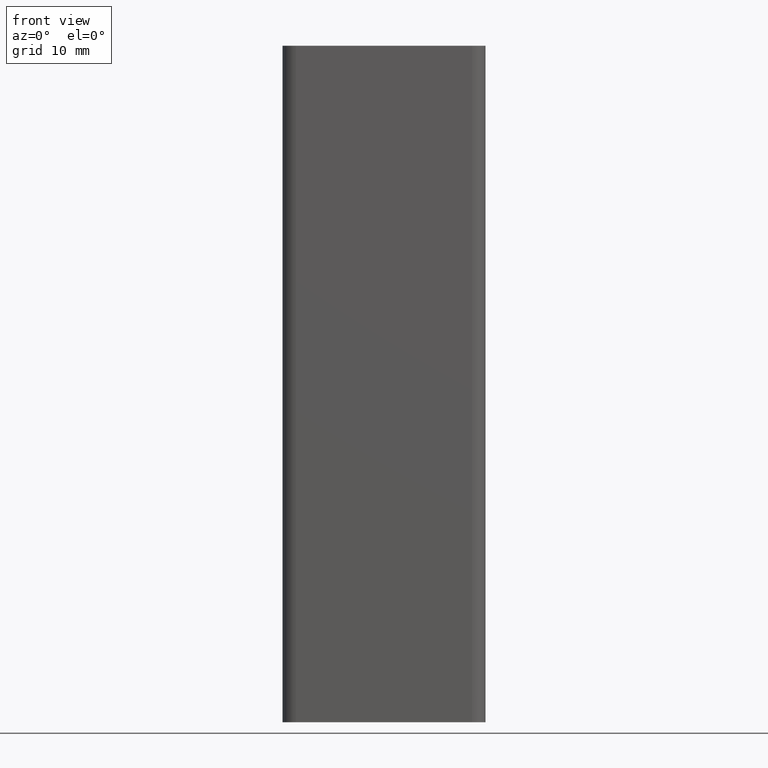
[diagram: clean part render]
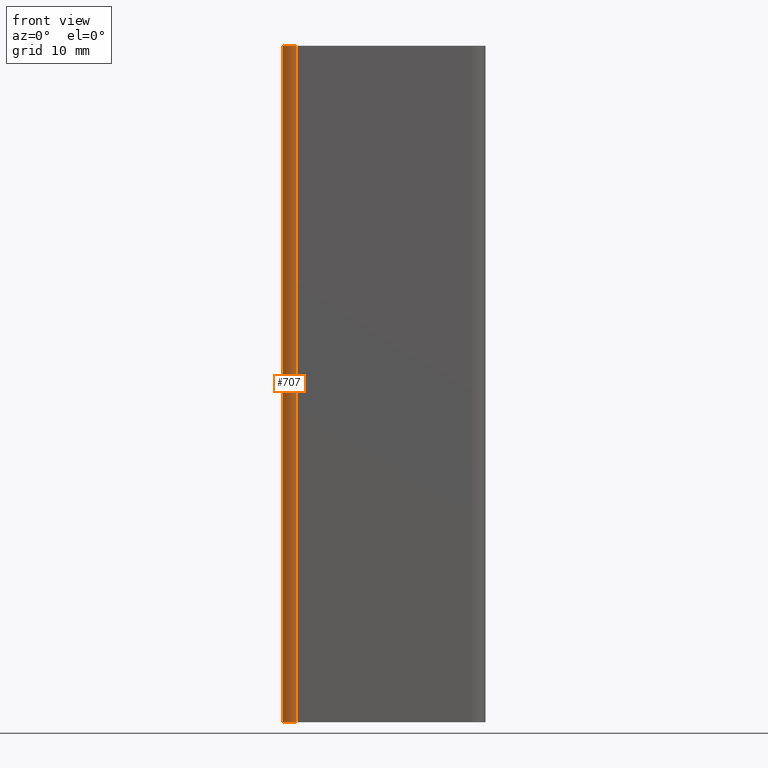
[diagram: same view with one face highlighted and labeled with its STEP entity id]
A machine part, front view. The second image highlights one B-rep face of the part: STEP entity #707.
In plain terms, the highlighted cylindrical surface (edge-blend (fillet) strip) has radius 2 mm, axis along (0, 0, 1).
Its self-contained STEP definition (entity closure, byte-faithful):
#31=CIRCLE('',#763,2.);
#32=CIRCLE('',#764,2.);
#55=CYLINDRICAL_SURFACE('',#762,2.);
#81=FACE_OUTER_BOUND('',#118,.T.);
#118=EDGE_LOOP('',(#530,#531,#532,#533));
#138=LINE('',#1016,#211);
#176=LINE('',#1126,#249);
#211=VECTOR('',#802,100.);
#249=VECTOR('',#910,100.);
#283=VERTEX_POINT('',#1012);
#285=VERTEX_POINT('',#1015);
#321=VERTEX_POINT('',#1123);
#322=VERTEX_POINT('',#1125);
#354=EDGE_CURVE('',#283,#285,#138,.T.);
#408=EDGE_CURVE('',#321,#283,#31,.T.);
#409=EDGE_CURVE('',#321,#322,#176,.T.);
#410=EDGE_CURVE('',#285,#322,#32,.T.);
#530=ORIENTED_EDGE('',*,*,#408,.F.);
#531=ORIENTED_EDGE('',*,*,#409,.T.);
#532=ORIENTED_EDGE('',*,*,#410,.F.);
#533=ORIENTED_EDGE('',*,*,#354,.F.);
#707=ADVANCED_FACE('',(#81),#55,.T.);
#762=AXIS2_PLACEMENT_3D('',#1122,#906,#907);
#763=AXIS2_PLACEMENT_3D('',#1124,#908,#909);
#764=AXIS2_PLACEMENT_3D('',#1127,#911,#912);
#802=DIRECTION('',(0.,0.,-1.));
#906=DIRECTION('center_axis',(0.,0.,1.));
#907=DIRECTION('ref_axis',(1.,-5.99520433297586E-14,0.));
#908=DIRECTION('center_axis',(0.,0.,1.));
#909=DIRECTION('ref_axis',(1.,-5.99520433297586E-14,0.));
#910=DIRECTION('',(0.,0.,-1.));
#911=DIRECTION('center_axis',(0.,0.,-1.));
#912=DIRECTION('ref_axis',(1.,-5.99520433297586E-14,0.));
#1012=CARTESIAN_POINT('',(-13.0001035817425,-14.9999999999992,100.));
#1015=CARTESIAN_POINT('',(-13.0001035817425,-14.9999999999992,0.));
#1016=CARTESIAN_POINT('',(-13.0001035817425,-14.9999999999992,0.));
#1122=CARTESIAN_POINT('Origin',(-13.0001035817423,-12.9999999999992,0.));
#1123=CARTESIAN_POINT('',(-15.0001035817423,-12.9999999999991,100.));
#1124=CARTESIAN_POINT('Origin',(-13.0001035817423,-12.9999999999992,100.));
#1125=CARTESIAN_POINT('',(-15.0001035817423,-12.9999999999991,0.));
#1126=CARTESIAN_POINT('',(-15.0001035817423,-12.9999999999991,0.));
#1127=CARTESIAN_POINT('Origin',(-13.0001035817423,-12.9999999999992,0.));